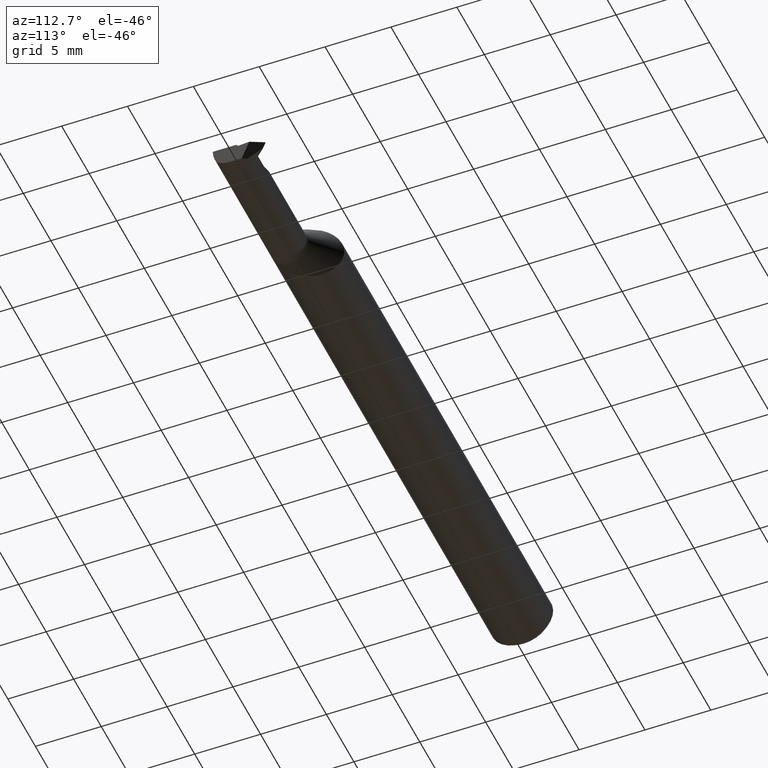
[diagram: clean part render]
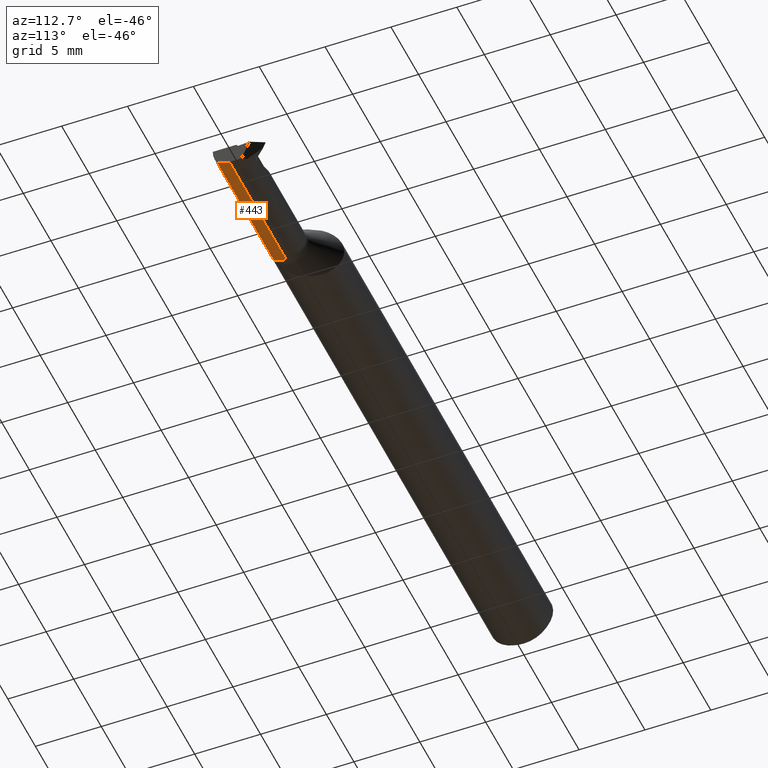
[diagram: same view with one face highlighted and labeled with its STEP entity id]
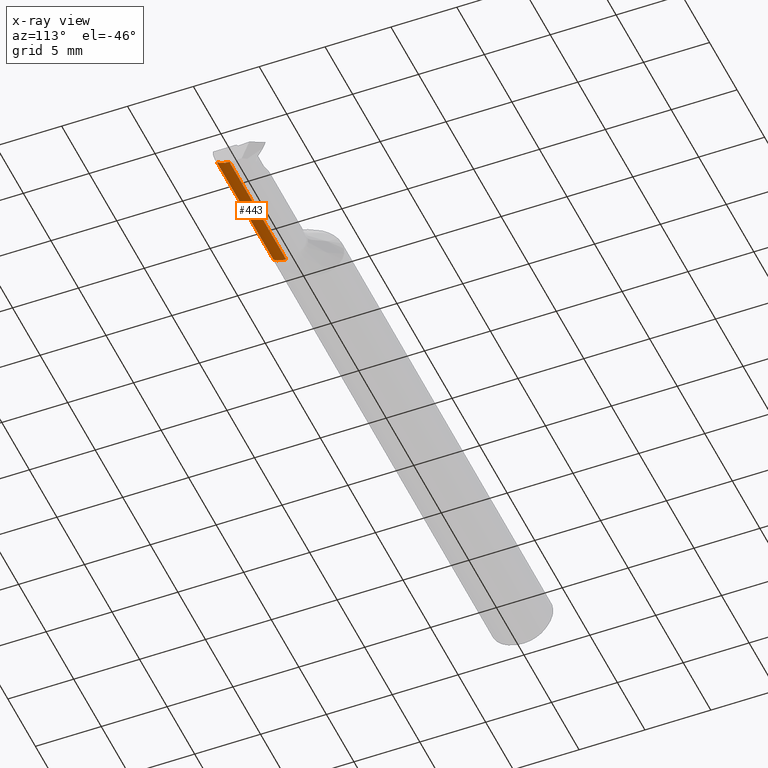
[diagram: x-ray of the same camera — body ghosted, the highlighted face saturated]
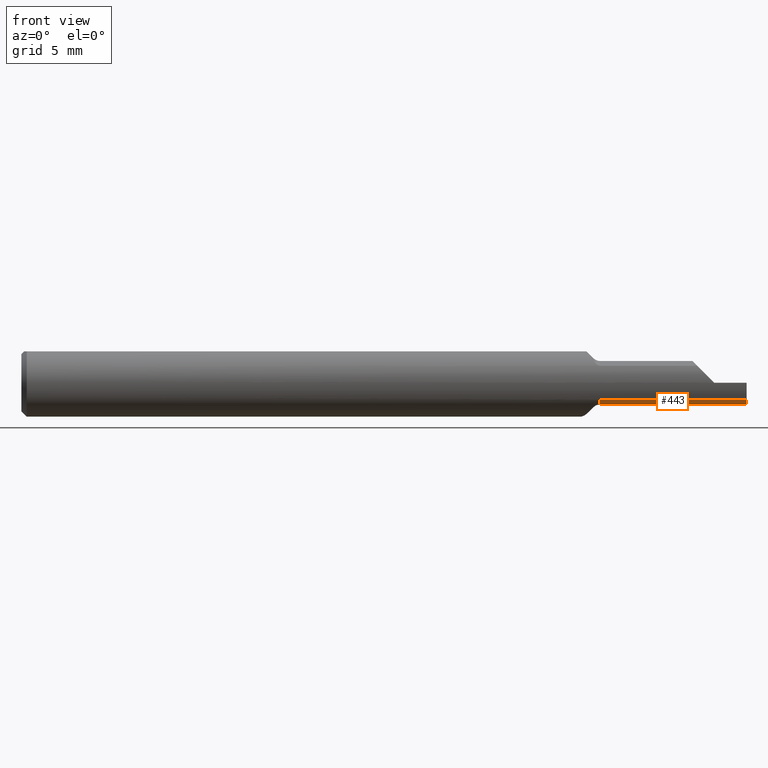
[diagram: same view with one face highlighted and labeled with its STEP entity id]
A machine part, auxiliary view. The second image highlights one B-rep face of the part: STEP entity #443.
The next image is the same camera in x-ray: the body ghosted, the highlighted face saturated — about 0% of this face is hidden behind the body in this view.
A second angle (front view) of the same face is appended — the face is thin or edge-on in the first view.
In plain terms, the highlighted cylindrical surface (edge-blend (fillet) strip) has radius 1.524 mm, axis along (-1, -0, -0).
Its self-contained STEP definition (entity closure, byte-faithful):
#33 = DIRECTION ( 'NONE',  ( -1.000000000000000000, -0.000000000000000000, -0.000000000000000000 ) ) ;
#61 = VECTOR ( 'NONE', #99, 39.37007874015748143 ) ;
#82 = AXIS2_PLACEMENT_3D ( 'NONE', #349, #1007, #591 ) ;
#89 = VERTEX_POINT ( 'NONE', #1039 ) ;
#98 = EDGE_LOOP ( 'NONE', ( #675, #167, #757, #157, #891 ) ) ;
#99 = DIRECTION ( 'NONE',  ( -1.000000000000000000, -0.000000000000000000, -0.000000000000000000 ) ) ;
#107 = LINE ( 'NONE', #862, #717 ) ;
#142 = CARTESIAN_POINT ( 'NONE',  ( 2.000000000000000000, -0.04360000000000001374, -0.06000000000000001860 ) ) ;
#152 = EDGE_CURVE ( 'NONE', #831, #628, #107, .T. ) ;
#157 = ORIENTED_EDGE ( 'NONE', *, *, #748, .T. ) ;
#165 = CIRCLE ( 'NONE', #535, 0.05999999999999999778 ) ;
#167 = ORIENTED_EDGE ( 'NONE', *, *, #152, .F. ) ;
#211 = DIRECTION ( 'NONE',  ( -1.000000000000000000, -0.000000000000000000, -0.000000000000000000 ) ) ;
#216 = CIRCLE ( 'NONE', #82, 0.06000000000000001166 ) ;
#268 = CARTESIAN_POINT ( 'NONE',  ( 1.961119976209501070, -0.04360000000000001374, -0.06000000000000001166 ) ) ;
#292 = CYLINDRICAL_SURFACE ( 'NONE', #1002, 0.05999999999999999778 ) ;
#349 = CARTESIAN_POINT ( 'NONE',  ( 2.000000000000000000, -0.04360000000000000681, 0.000000000000000000 ) ) ;
#443 = ADVANCED_FACE ( 'NONE', ( #551 ), #292, .T. ) ;
#448 = VERTEX_POINT ( 'NONE', #872 ) ;
#460 = DIRECTION ( 'NONE',  ( -1.000000000000000000, -0.000000000000000000, -0.000000000000000000 ) ) ;
#507 = CARTESIAN_POINT ( 'NONE',  ( 1.595355339059326916, -0.04360000000000000681, 0.000000000000000000 ) ) ;
#535 = AXIS2_PLACEMENT_3D ( 'NONE', #507, #670, #607 ) ;
#536 = CARTESIAN_POINT ( 'NONE',  ( 1.767499999999999849, -0.08098532110091744007, -0.04692907165266853309 ) ) ;
#538 = DIRECTION ( 'NONE',  ( 0.000000000000000000, 0.000000000000000000, 1.000000000000000000 ) ) ;
#551 = FACE_OUTER_BOUND ( 'NONE', #98, .T. ) ;
#581 = VERTEX_POINT ( 'NONE', #1049 ) ;
#591 = DIRECTION ( 'NONE',  ( 0.000000000000000000, 0.000000000000000000, 1.000000000000000000 ) ) ;
#607 = DIRECTION ( 'NONE',  ( 0.000000000000000000, 1.707404996040164561E-15, 1.000000000000000000 ) ) ;
#628 = VERTEX_POINT ( 'NONE', #268 ) ;
#635 = EDGE_CURVE ( 'NONE', #89, #831, #216, .T. ) ;
#670 = DIRECTION ( 'NONE',  ( 1.000000000000000000, 0.000000000000000000, 0.000000000000000000 ) ) ;
#675 = ORIENTED_EDGE ( 'NONE', *, *, #989, .F. ) ;
#679 = CARTESIAN_POINT ( 'NONE',  ( 1.584999999999999964, -0.04359999999999999987, -0.05999999999999999778 ) ) ;
#717 = VECTOR ( 'NONE', #33, 39.37007874015748143 ) ;
#748 = EDGE_CURVE ( 'NONE', #89, #448, #963, .T. ) ;
#757 = ORIENTED_EDGE ( 'NONE', *, *, #635, .F. ) ;
#831 = VERTEX_POINT ( 'NONE', #142 ) ;
#843 = LINE ( 'NONE', #679, #61 ) ;
#862 = CARTESIAN_POINT ( 'NONE',  ( 2.000000000000000000, -0.04360000000000001374, -0.06000000000000001860 ) ) ;
#872 = CARTESIAN_POINT ( 'NONE',  ( 1.595355339059326916, -0.08098532110091744007, -0.04692907165266853309 ) ) ;
#891 = ORIENTED_EDGE ( 'NONE', *, *, #1024, .T. ) ;
#949 = CARTESIAN_POINT ( 'NONE',  ( 1.584999999999999964, -0.04360000000000000681, 0.000000000000000000 ) ) ;
#963 = LINE ( 'NONE', #536, #1056 ) ;
#989 = EDGE_CURVE ( 'NONE', #628, #581, #843, .T. ) ;
#1002 = AXIS2_PLACEMENT_3D ( 'NONE', #949, #211, #538 ) ;
#1007 = DIRECTION ( 'NONE',  ( 1.000000000000000000, -0.000000000000000000, -0.000000000000000000 ) ) ;
#1024 = EDGE_CURVE ( 'NONE', #448, #581, #165, .T. ) ;
#1039 = CARTESIAN_POINT ( 'NONE',  ( 2.000000000000000000, -0.08098532110091745395, -0.04692907165266857472 ) ) ;
#1049 = CARTESIAN_POINT ( 'NONE',  ( 1.595355339059326916, -0.04359999999999999987, -0.05999999999999999778 ) ) ;
#1056 = VECTOR ( 'NONE', #460, 39.37007874015748143 ) ;